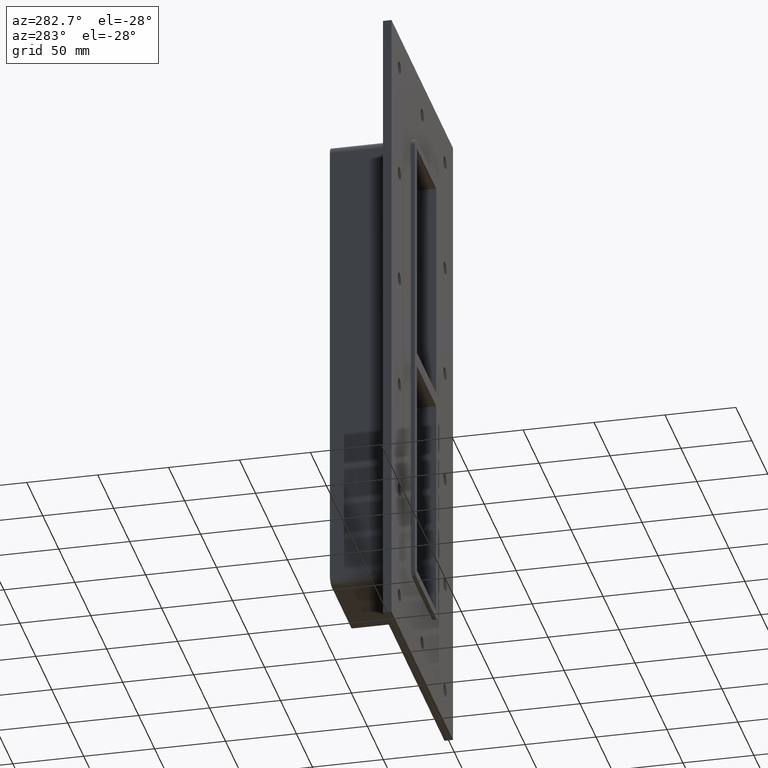
[diagram: clean part render]
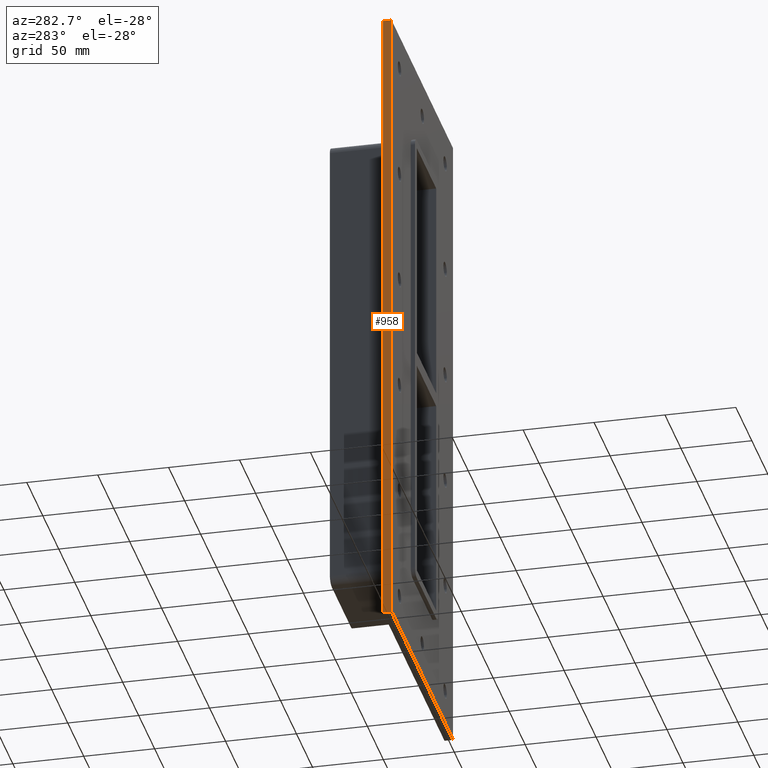
[diagram: same view with one face highlighted and labeled with its STEP entity id]
A machine part, auxiliary view. The second image highlights one B-rep face of the part: STEP entity #958.
In plain terms, the highlighted planar face has unit normal (-1, 0, 0).
Its self-contained STEP definition (entity closure, byte-faithful):
#638=CARTESIAN_POINT('',(-96.25,6.000000000000001,230.50000000000006));
#639=VERTEX_POINT('',#638);
#656=CARTESIAN_POINT('',(-96.25,6.000000000000001,-230.50000000000006));
#657=VERTEX_POINT('',#656);
#664=CARTESIAN_POINT('',(-96.25,6.000000000000001,-230.5));
#665=DIRECTION('',(0.0,0.0,1.0));
#666=VECTOR('',#665,461.00000000000011);
#667=LINE('',#664,#666);
#668=EDGE_CURVE('',#657,#639,#667,.T.);
#790=CARTESIAN_POINT('',(-96.25,0.0,230.50000000000006));
#791=VERTEX_POINT('',#790);
#800=CARTESIAN_POINT('',(-96.25,0.0,-230.5));
#801=VERTEX_POINT('',#800);
#802=CARTESIAN_POINT('',(-96.25,0.0,-230.5));
#803=DIRECTION('',(0.0,0.0,1.0));
#804=VECTOR('',#803,461.00000000000011);
#805=LINE('',#802,#804);
#806=EDGE_CURVE('',#801,#791,#805,.T.);
#937=CARTESIAN_POINT('',(-96.25,0.0,-230.5));
#938=DIRECTION('',(-1.0,0.0,0.0));
#939=DIRECTION('',(0.0,0.0,1.0));
#940=AXIS2_PLACEMENT_3D('',#937,#938,#939);
#941=PLANE('',#940);
#942=ORIENTED_EDGE('',*,*,#806,.T.);
#943=CARTESIAN_POINT('',(-96.25,0.0,230.50000000000006));
#944=DIRECTION('',(0.0,1.0,0.0));
#945=VECTOR('',#944,6.000000000000001);
#946=LINE('',#943,#945);
#947=EDGE_CURVE('',#791,#639,#946,.T.);
#948=ORIENTED_EDGE('',*,*,#947,.T.);
#949=ORIENTED_EDGE('',*,*,#668,.F.);
#950=CARTESIAN_POINT('',(-96.25,0.0,-230.5));
#951=DIRECTION('',(0.0,1.0,0.0));
#952=VECTOR('',#951,6.000000000000001);
#953=LINE('',#950,#952);
#954=EDGE_CURVE('',#801,#657,#953,.T.);
#955=ORIENTED_EDGE('',*,*,#954,.F.);
#956=EDGE_LOOP('',(#942,#948,#949,#955));
#957=FACE_OUTER_BOUND('',#956,.T.);
#958=ADVANCED_FACE('',(#957),#941,.T.);